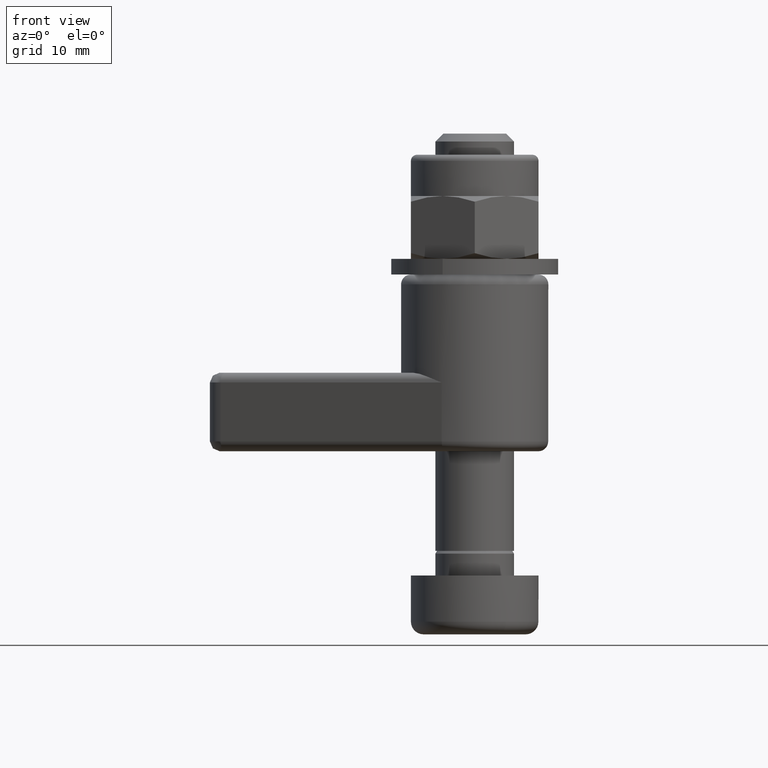
[diagram: clean part render]
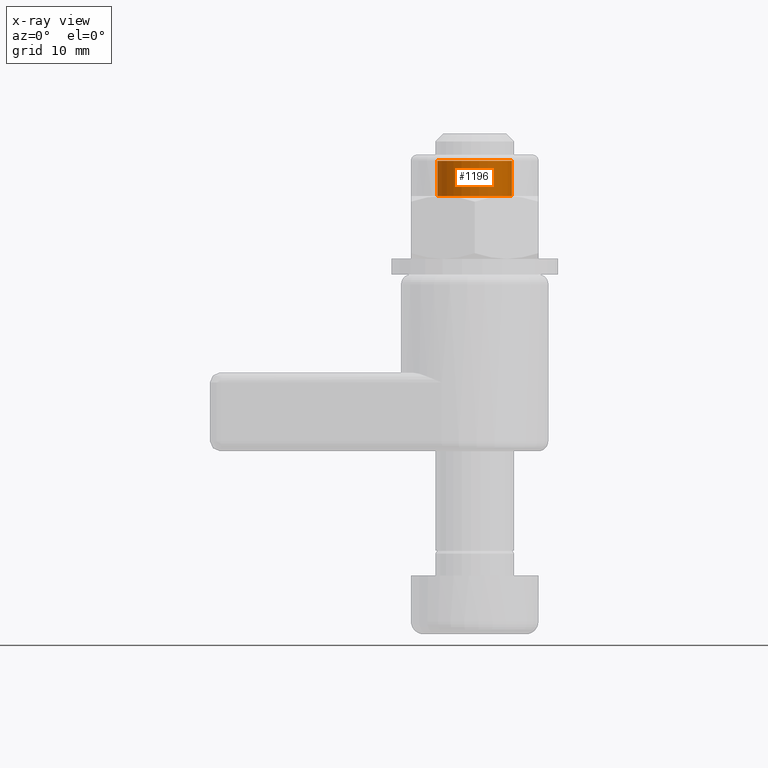
[diagram: x-ray — body ghosted, one internal face saturated and labeled with its STEP entity id]
A machine part, front view, then the same camera in x-ray: the body is ghosted and one INTERNAL B-rep face — a face not visible from any outside direction — is saturated and labeled: STEP entity #1196.
In plain terms, the highlighted cylindrical surface (bore or boss wall) has radius 3.7917 mm, axis along (0, 0, 1).
Its self-contained STEP definition (entity closure, byte-faithful):
#99=LINE('',#1955,#164);
#164=VECTOR('',#1571,3.79166666666667);
#229=CYLINDRICAL_SURFACE('',#1402,3.79166666666667);
#263=FACE_OUTER_BOUND('',#341,.T.);
#341=EDGE_LOOP('',(#801,#802,#803,#804));
#429=CIRCLE('',#1401,3.79166666666667);
#430=CIRCLE('',#1403,3.79166666666667);
#506=VERTEX_POINT('',#1951);
#507=VERTEX_POINT('',#1954);
#621=EDGE_CURVE('',#506,#506,#429,.T.);
#622=EDGE_CURVE('',#506,#507,#99,.T.);
#623=EDGE_CURVE('',#507,#507,#430,.T.);
#801=ORIENTED_EDGE('',*,*,#621,.F.);
#802=ORIENTED_EDGE('',*,*,#622,.T.);
#803=ORIENTED_EDGE('',*,*,#623,.F.);
#804=ORIENTED_EDGE('',*,*,#622,.F.);
#1196=ADVANCED_FACE('',(#263),#229,.F.);
#1401=AXIS2_PLACEMENT_3D('',#1952,#1567,#1568);
#1402=AXIS2_PLACEMENT_3D('',#1953,#1569,#1570);
#1403=AXIS2_PLACEMENT_3D('',#1956,#1572,#1573);
#1567=DIRECTION('center_axis',(0.,0.,1.));
#1568=DIRECTION('ref_axis',(-1.,0.,0.));
#1569=DIRECTION('center_axis',(0.,0.,1.));
#1570=DIRECTION('ref_axis',(-1.,0.,0.));
#1571=DIRECTION('',(0.,0.,1.));
#1572=DIRECTION('center_axis',(0.,0.,-1.));
#1573=DIRECTION('ref_axis',(-1.,0.,0.));
#1951=CARTESIAN_POINT('',(3.79166666666667,4.64345244676705E-16,6.4));
#1952=CARTESIAN_POINT('Origin',(0.,0.,6.4));
#1953=CARTESIAN_POINT('Origin',(0.,0.,6.4));
#1954=CARTESIAN_POINT('',(3.79166666666667,4.64345244676705E-16,9.975));
#1955=CARTESIAN_POINT('',(3.79166666666667,4.64345244676705E-16,6.4));
#1956=CARTESIAN_POINT('Origin',(0.,0.,9.975));